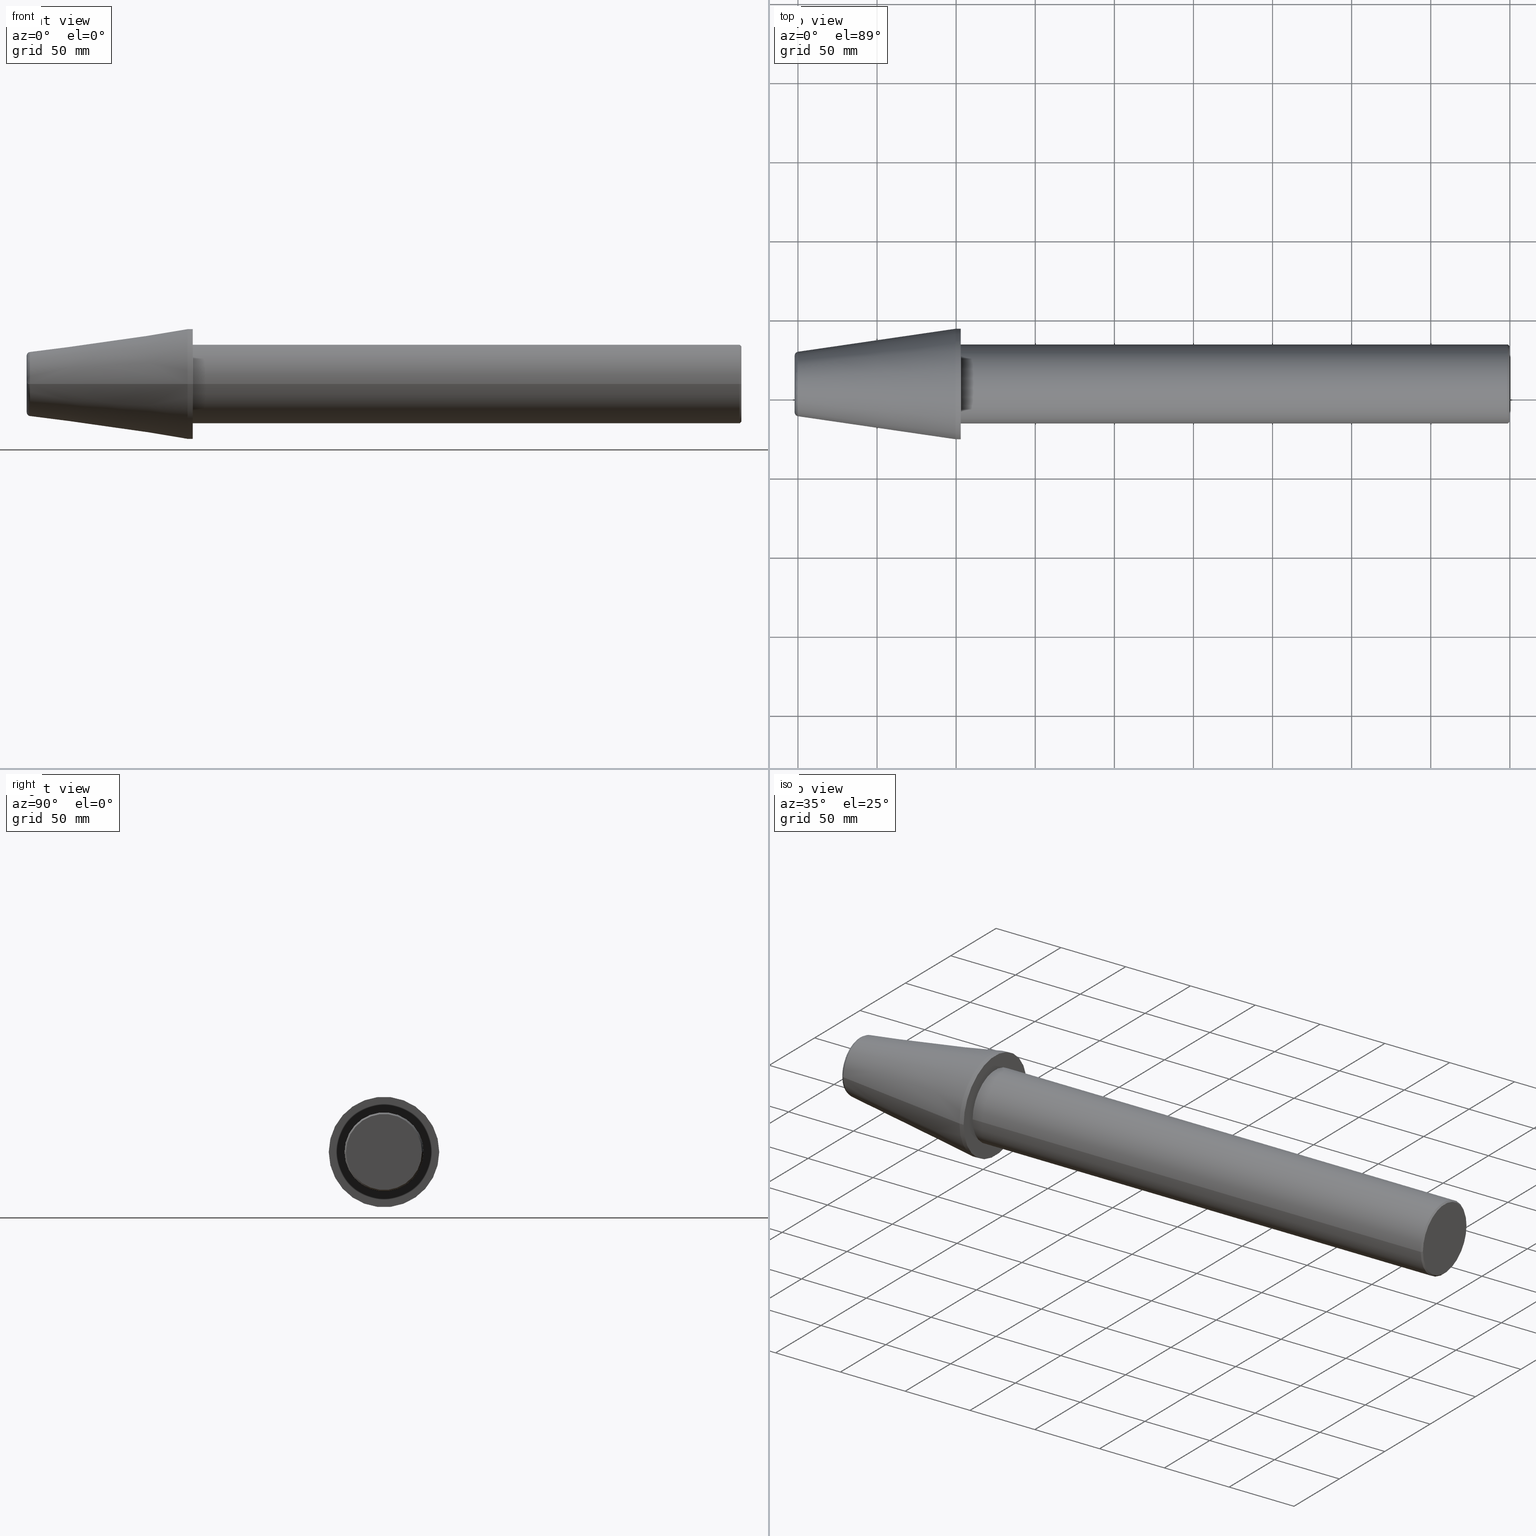
[diagram: canonical four-view strip — front | top / right | iso, engineering-drawing reading convention]
A machine part, canonical four-view strip (front | top / right | iso — engineering-drawing reading convention). The complete STEP part file that produces these views, byte-faithful:
ISO-10303-21;
HEADER;
FILE_DESCRIPTION (( 'STEP AP203' ),
    '1' );
FILE_NAME ('SK50 MASTER MANDRELL DIA50 L350.STEP',
    '2019-05-03T09:29:04',
    ( '' ),
    ( '' ),
    'SwSTEP 2.0',
    'SolidWorks 2014',
    '' );
FILE_SCHEMA (( 'CONFIG_CONTROL_DESIGN' ));
ENDSEC;

DATA;
#1 = APPROVAL_PERSON_ORGANIZATION ( #142, #179, #63 ) ;
#2 = ORIENTED_EDGE ( 'NONE', *, *, #336, .F. ) ;
#3 = DIRECTION ( 'NONE',  ( 1.000000000000000000, 6.357755330709176700E-015, 3.178877665354588400E-015 ) ) ;
#4 = DIRECTION ( 'NONE',  ( 6.357755330709176700E-015, -1.000000000000000000, 0.0000000000000000000 ) ) ;
#5 = CARTESIAN_POINT ( 'NONE',  ( 1697.925038306884300, 1644.348944982287800, 4.277078946022387300E-015 ) ) ;
#6 =( NAMED_UNIT ( * ) PLANE_ANGLE_UNIT ( ) SI_UNIT ( $, .RADIAN. ) );
#7 = ORIENTED_EDGE ( 'NONE', *, *, #90, .T. ) ;
#8 = DIRECTION ( 'NONE',  ( 1.000000000000000000, 7.864335758274511400E-015, 0.0000000000000000000 ) ) ;
#9 = FACE_OUTER_BOUND ( 'NONE', #147, .T. ) ;
#10 = EDGE_LOOP ( 'NONE', ( #422, #274, #356, #178 ) ) ;
#11 = CARTESIAN_POINT ( 'NONE',  ( 1799.675038306884500, 1609.423944982286500, 0.0000000000000000000 ) ) ;
#12 = AXIS2_PLACEMENT_3D ( 'NONE', #300, #132, #386 ) ;
#13 = AXIS2_PLACEMENT_3D ( 'NONE', #25, #3, #14 ) ;
#14 = DIRECTION ( 'NONE',  ( -6.357755330709217000E-015, 1.000000000000000000, 0.0000000000000000000 ) ) ;
#15 = DIRECTION ( 'NONE',  ( -1.088545056628355800E-014, 1.000000000000000000, 0.0000000000000000000 ) ) ;
#16 = SHAPE_DEFINITION_REPRESENTATION ( #428, #94 ) ;
#17 = CC_DESIGN_DATE_AND_TIME_ASSIGNMENT ( #226, #410, ( #127 ) ) ;
#18 = PERSON_AND_ORGANIZATION ( #334, #199 ) ;
#19 = DIRECTION ( 'NONE',  ( 7.864335758274511400E-015, -1.000000000000000000, 0.0000000000000000000 ) ) ;
#20 = DIRECTION ( 'NONE',  ( -1.000000000000000000, -7.864335758274511400E-015, 0.0000000000000000000 ) ) ;
#21 = PLANE ( 'NONE',  #223 ) ;
#22 = AXIS2_PLACEMENT_3D ( 'NONE', #374, #414, #249 ) ;
#23 = CIRCLE ( 'NONE', #260, 34.92500000000209300 ) ;
#24 = EDGE_CURVE ( 'NONE', #114, #201, #23, .T. ) ;
#25 = CARTESIAN_POINT ( 'NONE',  ( 1799.675038306884500, 1609.423944982286700, -4.466826931958537700E-042 ) ) ;
#26 = DIRECTION ( 'NONE',  ( 8.881784197001836100E-015, -1.000000000000000000, 0.0000000000000000000 ) ) ;
#27 = DIRECTION ( 'NONE',  ( 1.000000000000000000, 7.864335758274511400E-015, 0.0000000000000000000 ) ) ;
#28 = CARTESIAN_POINT ( 'NONE',  ( 1802.875038306884600, 1609.423944982286500, 0.0000000000000000000 ) ) ;
#29 = CARTESIAN_POINT ( 'NONE',  ( 1799.675038306884700, 1574.498944982284900, 4.277078946022360400E-015 ) ) ;
#30 = DIRECTION ( 'NONE',  ( 1.000000000000000000, 7.864335758274511400E-015, 0.0000000000000000000 ) ) ;
#31 = DIRECTION ( 'NONE',  ( -1.000000000000000000, -7.864335758274511400E-015, -0.0000000000000000000 ) ) ;
#32 = VECTOR ( 'NONE', #54, 1000.000000000000000 ) ;
#33 = CARTESIAN_POINT ( 'NONE',  ( 1802.875038306884100, 1644.348944982288500, 0.0000000000000000000 ) ) ;
#34 = AXIS2_PLACEMENT_3D ( 'NONE', #324, #424, #302 ) ;
#35 = VERTEX_POINT ( 'NONE', #75 ) ;
#36 = CIRCLE ( 'NONE', #68, 24.99999999999835900 ) ;
#37 = DIRECTION ( 'NONE',  ( 8.881784197001836100E-015, -1.000000000000000000, 0.0000000000000000000 ) ) ;
#38 = PRODUCT ( 'SK50 MASTER MANDRELL DIA50 L350', 'SK50 MASTER MANDRELL DIA50 L350', '', ( #237 ) ) ;
#39 = DIRECTION ( 'NONE',  ( 0.9895327870518778600, -0.1443082234293763500, 3.163276336286633200E-015 ) ) ;
#40 = PRODUCT_DEFINITION_FORMATION_WITH_SPECIFIED_SOURCE ( 'ANY', '', #38, .NOT_KNOWN. ) ;
#41 = EDGE_CURVE ( 'NONE', #201, #119, #180, .T. ) ;
#42 = EDGE_LOOP ( 'NONE', ( #106, #227, #408, #248 ) ) ;
#43 = CARTESIAN_POINT ( 'NONE',  ( 2148.675038306883800, 1584.423944982292400, 0.0000000000000000000 ) ) ;
#44 = DATE_AND_TIME ( #335, #259 ) ;
#45 = CC_DESIGN_PERSON_AND_ORGANIZATION_ASSIGNMENT ( #118, #202, ( #40 ) ) ;
#46 = CALENDAR_DATE ( 2019, 3, 5 ) ;
#47 = VERTEX_POINT ( 'NONE', #59 ) ;
#48 =( GEOMETRIC_REPRESENTATION_CONTEXT ( 3 ) GLOBAL_UNCERTAINTY_ASSIGNED_CONTEXT ( ( #148 ) ) GLOBAL_UNIT_ASSIGNED_CONTEXT ( ( #418, #6, #383 ) ) REPRESENTATION_CONTEXT ( 'NONE', 'WORKASPACE' ) );
#49 = CARTESIAN_POINT ( 'NONE',  ( 1700.064267748310600, 1629.822237507979700, 0.0000000000000000000 ) ) ;
#50 = CIRCLE ( 'NONE', #235, 24.99999999999835900 ) ;
#51 = ORIENTED_EDGE ( 'NONE', *, *, #24, .T. ) ;
#52 = DIRECTION ( 'NONE',  ( 8.881784197001836100E-015, -1.000000000000000000, 0.0000000000000000000 ) ) ;
#53 = AXIS2_PLACEMENT_3D ( 'NONE', #379, #216, #407 ) ;
#54 = DIRECTION ( 'NONE',  ( -0.7071067811866135200, -0.7071067811864815100, 0.0000000000000000000 ) ) ;
#55 = DATE_AND_TIME ( #46, #251 ) ;
#56 = CONICAL_SURFACE ( 'NONE', #181, 24.99999999999680300, 0.7853981633973372600 ) ;
#57 = ORIENTED_EDGE ( 'NONE', *, *, #145, .F. ) ;
#58 = DIRECTION ( 'NONE',  ( -1.000000000000000000, -7.864335758274511400E-015, -0.0000000000000000000 ) ) ;
#59 = CARTESIAN_POINT ( 'NONE',  ( 2148.675038306883800, 1584.423944982292600, 0.0000000000000000000 ) ) ;
#60 = AXIS2_PLACEMENT_3D ( 'NONE', #340, #346, #266 ) ;
#61 = CARTESIAN_POINT ( 'NONE',  ( 1697.925038306884500, 1609.423944982285500, 0.0000000000000000000 ) ) ;
#62 = DIRECTION ( 'NONE',  ( -1.000000000000000000, -1.776356839400485500E-014, 0.0000000000000000000 ) ) ;
#63 = APPROVAL_ROLE ( '' ) ;
#64 = CARTESIAN_POINT ( 'NONE',  ( 1802.875038306884600, 1574.498944982284500, 0.0000000000000000000 ) ) ;
#65 = AXIS2_PLACEMENT_3D ( 'NONE', #427, #162, #190 ) ;
#66 = DIRECTION ( 'NONE',  ( -1.000000000000000000, -7.864335758274511400E-015, -0.0000000000000000000 ) ) ;
#67 = CC_DESIGN_PERSON_AND_ORGANIZATION_ASSIGNMENT ( #18, #409, ( #127 ) ) ;
#68 = AXIS2_PLACEMENT_3D ( 'NONE', #313, #342, #224 ) ;
#69 = EDGE_LOOP ( 'NONE', ( #192, #134, #282, #263 ) ) ;
#70 = ORIENTED_EDGE ( 'NONE', *, *, #296, .F. ) ;
#71 = CARTESIAN_POINT ( 'NONE',  ( 1802.875038306884300, 1634.423944982284900, 3.061616997868183100E-015 ) ) ;
#72 = ADVANCED_FACE ( 'NONE', ( #89 ), #395, .T. ) ;
#73 = LINE ( 'NONE', #43, #32 ) ;
#74 = DIRECTION ( 'NONE',  ( 6.357755330709176700E-015, -1.000000000000000000, 0.0000000000000000000 ) ) ;
#75 = CARTESIAN_POINT ( 'NONE',  ( 1697.925038306885000, 1591.499484424221700, 0.0000000000000000000 ) ) ;
#76 = SECURITY_CLASSIFICATION ( '', '', #96 ) ;
#77 = DIRECTION ( 'NONE',  ( -1.000000000000000000, -7.864335758274511400E-015, -0.0000000000000000000 ) ) ;
#78 = DIRECTION ( 'NONE',  ( -1.000000000000000000, -7.864335758274511400E-015, -0.0000000000000000000 ) ) ;
#79 = VECTOR ( 'NONE', #39, 1000.000000000000200 ) ;
#80 = AXIS2_PLACEMENT_3D ( 'NONE', #365, #30, #370 ) ;
#81 = ORIENTED_EDGE ( 'NONE', *, *, #290, .T. ) ;
#82 = FACE_OUTER_BOUND ( 'NONE', #10, .T. ) ;
#83 = VERTEX_POINT ( 'NONE', #49 ) ;
#84 = APPROVAL_DATE_TIME ( #337, #169 ) ;
#85 = EDGE_CURVE ( 'NONE', #325, #47, #73, .T. ) ;
#86 = EDGE_CURVE ( 'NONE', #272, #247, #400, .T. ) ;
#87 = PRODUCT_RELATED_PRODUCT_CATEGORY ( 'detail', '', ( #38 ) ) ;
#88 = VECTOR ( 'NONE', #183, 1000.000000000000000 ) ;
#89 = FACE_OUTER_BOUND ( 'NONE', #141, .T. ) ;
#90 = EDGE_CURVE ( 'NONE', #405, #329, #373, .T. ) ;
#91 = ADVANCED_FACE ( 'NONE', ( #99, #9 ), #21, .F. ) ;
#92 = CARTESIAN_POINT ( 'NONE',  ( 1697.925038306884500, 1627.348405540349900, 2.255704732903340900E-015 ) ) ;
#93 = ORIENTED_EDGE ( 'NONE', *, *, #86, .F. ) ;
#94 = ADVANCED_BREP_SHAPE_REPRESENTATION ( 'SK50 MASTER MANDRELL DIA50 L350', ( #289, #12 ), #48 ) ;
#95 = CC_DESIGN_APPROVAL ( #279, ( #76 ) ) ;
#96 = SECURITY_CLASSIFICATION_LEVEL ( 'unclassified' ) ;
#97 = EDGE_CURVE ( 'NONE', #329, #119, #109, .T. ) ;
#98 = EDGE_LOOP ( 'NONE', ( #51, #304, #203, #146 ) ) ;
#99 = FACE_BOUND ( 'NONE', #421, .T. ) ;
#100 = DIRECTION ( 'NONE',  ( 1.850371707708883500E-014, -1.000000000000000000, 0.0000000000000000000 ) ) ;
#101 = EDGE_CURVE ( 'NONE', #47, #149, #36, .T. ) ;
#102 = ADVANCED_FACE ( 'NONE', ( #160 ), #135, .T. ) ;
#103 = CARTESIAN_POINT ( 'NONE',  ( 1697.925038306884300, 1628.649931267562800, 38.45197257055483700 ) ) ;
#104 = CC_DESIGN_APPROVAL ( #179, ( #40 ) ) ;
#105 = ORIENTED_EDGE ( 'NONE', *, *, #307, .F. ) ;
#106 = ORIENTED_EDGE ( 'NONE', *, *, #238, .T. ) ;
#107 = CARTESIAN_POINT ( 'NONE',  ( 1697.925038306884300, 1628.649931267562800, 3.240863287713775200E-015 ) ) ;
#108 = LINE ( 'NONE', #217, #186 ) ;
#109 = CIRCLE ( 'NONE', #228, 34.92500000000209300 ) ;
#110 = LINE ( 'NONE', #359, #348 ) ;
#111 = CARTESIAN_POINT ( 'NONE',  ( 2148.675038306883400, 1609.423944982289200, 0.0000000000000000000 ) ) ;
#112 = EDGE_CURVE ( 'NONE', #405, #83, #221, .T. ) ;
#113 = CIRCLE ( 'NONE', #53, 2.500000000000168800 ) ;
#114 = VERTEX_POINT ( 'NONE', #64 ) ;
#115 = EDGE_CURVE ( 'NONE', #372, #325, #380, .T. ) ;
#116 = FACE_OUTER_BOUND ( 'NONE', #200, .T. ) ;
#117 = LINE ( 'NONE', #194, #88 ) ;
#118 = PERSON_AND_ORGANIZATION ( #334, #199 ) ;
#119 = VERTEX_POINT ( 'NONE', #411 ) ;
#120 = COORDINATED_UNIVERSAL_TIME_OFFSET ( 5, 30, .AHEAD. ) ;
#121 = AXIS2_PLACEMENT_3D ( 'NONE', #286, #382, #37 ) ;
#122 = CARTESIAN_POINT ( 'NONE',  ( 1802.875038306884300, 1609.423944982286500, 0.0000000000000000000 ) ) ;
#123 = CYLINDRICAL_SURFACE ( 'NONE', #121, 24.99999999999835900 ) ;
#124 = VECTOR ( 'NONE', #78, 1000.000000000000000 ) ;
#125 = CARTESIAN_POINT ( 'NONE',  ( 1698.776365368041500, 1629.634416642537600, 2.475068942798598800E-015 ) ) ;
#126 = DIRECTION ( 'NONE',  ( 1.000000000000000000, 7.864335758274511400E-015, 0.0000000000000000000 ) ) ;
#127 = PRODUCT_DEFINITION ( 'UNKNOWN', '', #40, #278 ) ;
#128 = APPROVAL_DATE_TIME ( #55, #179 ) ;
#129 = EDGE_LOOP ( 'NONE', ( #341, #322, #426, #312 ) ) ;
#130 = AXIS2_PLACEMENT_3D ( 'NONE', #378, #229, #339 ) ;
#131 = COORDINATED_UNIVERSAL_TIME_OFFSET ( 5, 30, .AHEAD. ) ;
#132 = DIRECTION ( 'NONE',  ( 0.0000000000000000000, 0.0000000000000000000, 1.000000000000000000 ) ) ;
#133 = CIRCLE ( 'NONE', #165, 2.500000000000168800 ) ;
#134 = ORIENTED_EDGE ( 'NONE', *, *, #115, .T. ) ;
#135 = CONICAL_SURFACE ( 'NONE', #13, 34.92500000000187300, 0.1448138426688974100 ) ;
#136 = DIRECTION ( 'NONE',  ( 1.776356839400477700E-014, -1.000000000000000000, 0.0000000000000000000 ) ) ;
#137 = CC_DESIGN_DATE_AND_TIME_ASSIGNMENT ( #363, #206, ( #76 ) ) ;
#138 = CARTESIAN_POINT ( 'NONE',  ( 1697.925038306884700, 1591.499484424221700, -1.361473678611037100E-013 ) ) ;
#139 = ORIENTED_EDGE ( 'NONE', *, *, #270, .T. ) ;
#140 = FACE_OUTER_BOUND ( 'NONE', #98, .T. ) ;
#141 = EDGE_LOOP ( 'NONE', ( #143, #81, #243, #280 ) ) ;
#142 = PERSON_AND_ORGANIZATION ( #334, #199 ) ;
#143 = ORIENTED_EDGE ( 'NONE', *, *, #270, .F. ) ;
#144 = ORIENTED_EDGE ( 'NONE', *, *, #301, .F. ) ;
#145 = EDGE_CURVE ( 'NONE', #271, #35, #269, .T. ) ;
#146 = ORIENTED_EDGE ( 'NONE', *, *, #320, .F. ) ;
#147 = EDGE_LOOP ( 'NONE', ( #182, #267 ) ) ;
#148 = UNCERTAINTY_MEASURE_WITH_UNIT (LENGTH_MEASURE( 1.000000000000000100E-005 ), #418, 'distance_accuracy_value', 'NONE');
#149 = VERTEX_POINT ( 'NONE', #258 ) ;
#150 = CARTESIAN_POINT ( 'NONE',  ( 1697.925038306884500, 1590.197958697008300, -1.460332610175303800E-013 ) ) ;
#151 = ADVANCED_FACE ( 'NONE', ( #415 ), #215, .F. ) ;
#152 = ORIENTED_EDGE ( 'NONE', *, *, #296, .T. ) ;
#153 = EDGE_LOOP ( 'NONE', ( #321, #305, #430, #396 ) ) ;
#154 = PLANE ( 'NONE',  #65 ) ;
#155 = CC_DESIGN_PERSON_AND_ORGANIZATION_ASSIGNMENT ( #416, #231, ( #38 ) ) ;
#156 = CARTESIAN_POINT ( 'NONE',  ( 1697.925038306884500, 1627.348405540349600, 3.021469240264164200E-015 ) ) ;
#157 = CARTESIAN_POINT ( 'NONE',  ( 1697.925038306884500, 1627.348405540349900, 35.84892111612818200 ) ) ;
#158 = PERSON_AND_ORGANIZATION ( #334, #199 ) ;
#159 = LOCAL_TIME ( 14, 59, 4.000000000000000000, #120 ) ;
#160 = FACE_OUTER_BOUND ( 'NONE', #168, .T. ) ;
#161 = AXIS2_PLACEMENT_3D ( 'NONE', #316, #318, #319 ) ;
#162 = DIRECTION ( 'NONE',  ( 1.000000000000000000, 7.864335758274511400E-015, -0.0000000000000000000 ) ) ;
#163 = CARTESIAN_POINT ( 'NONE',  ( 1700.064267748310800, 1629.822237507979700, 40.79658505138835500 ) ) ;
#164 = CARTESIAN_POINT ( 'NONE',  ( 1700.064267748310800, 1629.822237507979700, 3.438475217741575500E-015 ) ) ;
#165 = AXIS2_PLACEMENT_3D ( 'NONE', #250, #254, #273 ) ;
#166 = ORIENTED_EDGE ( 'NONE', *, *, #275, .F. ) ;
#167 = CYLINDRICAL_SURFACE ( 'NONE', #218, 34.92500000000209300 ) ;
#168 = EDGE_LOOP ( 'NONE', ( #152, #7, #241, #105 ) ) ;
#169 = APPROVAL ( #385, 'UNSPECIFIED' ) ;
#170 = CARTESIAN_POINT ( 'NONE',  ( 1697.925038306885000, 1591.499484424221700, -35.84892111612791200 ) ) ;
#171 = AXIS2_PLACEMENT_3D ( 'NONE', #347, #188, #189 ) ;
#172 = CIRCLE ( 'NONE', #212, 34.92500000000209300 ) ;
#173 = ORIENTED_EDGE ( 'NONE', *, *, #101, .T. ) ;
#174 = CARTESIAN_POINT ( 'NONE',  ( 1698.776365368041500, 1629.634416642537600, 3.406814852525186900E-015 ) ) ;
#175 = FACE_OUTER_BOUND ( 'NONE', #129, .T. ) ;
#176 = CARTESIAN_POINT ( 'NONE',  ( 1697.925038306884500, 1627.348405540349900, 2.255704732903340900E-015 ) ) ;
#177 = AXIS2_PLACEMENT_3D ( 'NONE', #401, #256, #225 ) ;
#178 = ORIENTED_EDGE ( 'NONE', *, *, #85, .F. ) ;
#179 = APPROVAL ( #303, 'UNSPECIFIED' ) ;
#180 = LINE ( 'NONE', #5, #387 ) ;
#181 = AXIS2_PLACEMENT_3D ( 'NONE', #111, #62, #136 ) ;
#182 = ORIENTED_EDGE ( 'NONE', *, *, #24, .F. ) ;
#183 = DIRECTION ( 'NONE',  ( -1.000000000000000000, -7.864335758274511400E-015, -0.0000000000000000000 ) ) ;
#184 = FACE_OUTER_BOUND ( 'NONE', #412, .T. ) ;
#185 = CIRCLE ( 'NONE', #60, 23.99999999999624800 ) ;
#186 = VECTOR ( 'NONE', #77, 1000.000000000000000 ) ;
#187 = ADVANCED_FACE ( 'NONE', ( #82 ), #56, .T. ) ;
#188 = DIRECTION ( 'NONE',  ( 1.000000000000000000, 6.357755330709176700E-015, 3.178877665354588400E-015 ) ) ;
#189 = DIRECTION ( 'NONE',  ( -6.357755330709217000E-015, 1.000000000000000000, 0.0000000000000000000 ) ) ;
#190 = DIRECTION ( 'NONE',  ( -7.864335758274511400E-015, 1.000000000000000000, 0.0000000000000000000 ) ) ;
#191 = COORDINATED_UNIVERSAL_TIME_OFFSET ( 5, 30, .AHEAD. ) ;
#192 = ORIENTED_EDGE ( 'NONE', *, *, #425, .F. ) ;
#193 = CARTESIAN_POINT ( 'NONE',  ( 1700.064267748310800, 1609.423944982285800, 0.0000000000000000000 ) ) ;
#194 = CARTESIAN_POINT ( 'NONE',  ( 1697.925038306884300, 1634.423944982284000, 3.061616997868182300E-015 ) ) ;
#195 = CARTESIAN_POINT ( 'NONE',  ( 1697.925038306885000, 1591.499484424221700, 0.0000000000000000000 ) ) ;
#196 = CC_DESIGN_SECURITY_CLASSIFICATION ( #76, ( #40 ) ) ;
#197 = CARTESIAN_POINT ( 'NONE',  ( 1700.064267748310800, 1589.025652456591200, 40.79658505138819900 ) ) ;
#198 = ADVANCED_FACE ( 'NONE', ( #328 ), #154, .F. ) ;
#199 = ORGANIZATION ( 'UNSPECIFIED', 'UNSPECIFIED', '' ) ;
#200 = EDGE_LOOP ( 'NONE', ( #173, #139, #244, #399 ) ) ;
#201 = VERTEX_POINT ( 'NONE', #277 ) ;
#202 = PERSON_AND_ORGANIZATION_ROLE ( 'design_supplier' ) ;
#203 = ORIENTED_EDGE ( 'NONE', *, *, #284, .T. ) ;
#204 = APPROVAL_ROLE ( '' ) ;
#205 = APPROVAL_STATUS ( 'not_yet_approved' ) ;
#206 = DATE_TIME_ROLE ( 'classification_date' ) ;
#207 = PERSON_AND_ORGANIZATION_ROLE ( 'classification_officer' ) ;
#208 = AXIS2_PLACEMENT_3D ( 'NONE', #264, #314, #100 ) ;
#209 = CARTESIAN_POINT ( 'NONE',  ( 1697.925038306884500, 1627.348405540349900, 2.255704732903340900E-015 ) ) ;
#210 = CC_DESIGN_APPROVAL ( #169, ( #127 ) ) ;
#211 = CONICAL_SURFACE ( 'NONE', #22, 24.99999999999680300, 0.7853981633973372600 ) ;
#212 = AXIS2_PLACEMENT_3D ( 'NONE', #327, #331, #332 ) ;
#213 = CARTESIAN_POINT ( 'NONE',  ( 1697.925038306884300, 1627.348405540349600, -35.84892111612791200 ) ) ;
#214 = EDGE_LOOP ( 'NONE', ( #2, #294 ) ) ;
#215 = PLANE ( 'NONE',  #177 ) ;
#216 = DIRECTION ( 'NONE',  ( 0.0000000000000000000, 0.0000000000000000000, 1.000000000000000000 ) ) ;
#217 = CARTESIAN_POINT ( 'NONE',  ( 1697.925038306884700, 1584.423944982287100, 0.0000000000000000000 ) ) ;
#218 = AXIS2_PLACEMENT_3D ( 'NONE', #255, #240, #317 ) ;
#219 = CIRCLE ( 'NONE', #161, 34.92500000000209300 ) ;
#220 = LOCAL_TIME ( 14, 59, 4.000000000000000000, #285 ) ;
#221 = CIRCLE ( 'NONE', #345, 20.39829252569380500 ) ;
#222 = CARTESIAN_POINT ( 'NONE',  ( 1700.064267748311100, 1589.025652456591600, -1.549376522232160900E-013 ) ) ;
#223 = AXIS2_PLACEMENT_3D ( 'NONE', #33, #20, #19 ) ;
#224 = DIRECTION ( 'NONE',  ( 0.0000000000000000000, -1.000000000000000000, 0.0000000000000000000 ) ) ;
#225 = DIRECTION ( 'NONE',  ( 7.864335758274511400E-015, -1.000000000000000000, 0.0000000000000000000 ) ) ;
#226 = DATE_AND_TIME ( #353, #350 ) ;
#227 = ORIENTED_EDGE ( 'NONE', *, *, #275, .T. ) ;
#228 = AXIS2_PLACEMENT_3D ( 'NONE', #11, #8, #4 ) ;
#229 = DIRECTION ( 'NONE',  ( 1.000000000000000000, 7.864335758274511400E-015, 0.0000000000000000000 ) ) ;
#230 = APPROVAL_PERSON_ORGANIZATION ( #298, #279, #204 ) ;
#231 = PERSON_AND_ORGANIZATION_ROLE ( 'design_owner' ) ;
#232 = ADVANCED_FACE ( 'NONE', ( #184 ), #242, .T. ) ;
#233 = CARTESIAN_POINT ( 'NONE',  ( 1700.064267748311100, 1589.025652456591600, -4.996140729932514400E-015 ) ) ;
#234 = CC_DESIGN_PERSON_AND_ORGANIZATION_ASSIGNMENT ( #398, #403, ( #40 ) ) ;
#235 = AXIS2_PLACEMENT_3D ( 'NONE', #344, #352, #362 ) ;
#236 = CARTESIAN_POINT ( 'NONE',  ( 1697.925038306884700, 1574.498944982283500, 0.0000000000000000000 ) ) ;
#237 = MECHANICAL_CONTEXT ( 'NONE', #355, 'mechanical' ) ;
#238 = EDGE_CURVE ( 'NONE', #35, #271, #311, .T. ) ;
#239 = AXIS2_PLACEMENT_3D ( 'NONE', #61, #66, #52 ) ;
#240 = DIRECTION ( 'NONE',  ( -1.000000000000000000, -7.864335758274511400E-015, -0.0000000000000000000 ) ) ;
#241 = ORIENTED_EDGE ( 'NONE', *, *, #284, .F. ) ;
#242 =( BOUNDED_SURFACE ( )  B_SPLINE_SURFACE ( 3, 3, ( 
 ( #138, #377, #157, #156 ),
 ( #150, #295, #103, #107 ),
 ( #292, #431, #349, #174 ),
 ( #222, #197, #163, #164 ) ),
 .UNSPECIFIED., .F., .F., .T. ) 
 B_SPLINE_SURFACE_WITH_KNOTS ( ( 4, 4 ),
 ( 4, 4 ),
 ( 0.0000000000000000000, 1.000000000000000000 ),
 ( 0.0000000000000000000, 1.000000000000000000 ),
 .UNSPECIFIED. ) 
 GEOMETRIC_REPRESENTATION_ITEM ( )  RATIONAL_B_SPLINE_SURFACE ( (
 ( 1.000000000000000000, 0.3333333333333308700, 0.3333333333333308700, 1.000000000000000000),
 ( 0.8376057957161654500, 0.2792019319053864500, 0.2792019319053864500, 0.8376057957161654500),
 ( 0.8376057957161654500, 0.2792019319053864500, 0.2792019319053864500, 0.8376057957161654500),
 ( 1.000000000000000000, 0.3333333333333308700, 0.3333333333333308700, 1.000000000000000000) ) ) 
 REPRESENTATION_ITEM ( '' )  SURFACE ( )  );
#243 = ORIENTED_EDGE ( 'NONE', *, *, #276, .T. ) ;
#244 = ORIENTED_EDGE ( 'NONE', *, *, #86, .T. ) ;
#245 = AXIS2_PLACEMENT_3D ( 'NONE', #28, #27, #26 ) ;
#246 = APPROVAL_PERSON_ORGANIZATION ( #158, #169, #389 ) ;
#247 = VERTEX_POINT ( 'NONE', #343 ) ;
#248 = ORIENTED_EDGE ( 'NONE', *, *, #351, .F. ) ;
#249 = DIRECTION ( 'NONE',  ( 1.776356839400477700E-014, -1.000000000000000000, 0.0000000000000000000 ) ) ;
#250 = CARTESIAN_POINT ( 'NONE',  ( 1700.425038306884500, 1627.348405540349900, 2.195113324887624100E-015 ) ) ;
#251 = LOCAL_TIME ( 14, 59, 4.000000000000000000, #191 ) ;
#252 = CIRCLE ( 'NONE', #130, 24.99999999999835900 ) ;
#253 = CALENDAR_DATE ( 2019, 3, 5 ) ;
#254 = DIRECTION ( 'NONE',  ( -9.631033613790952700E-031, 1.224646799147353200E-016, -1.000000000000000000 ) ) ;
#255 = CARTESIAN_POINT ( 'NONE',  ( 1697.925038306884500, 1609.423944982285500, 0.0000000000000000000 ) ) ;
#256 = DIRECTION ( 'NONE',  ( -1.000000000000000000, -7.864335758274511400E-015, 0.0000000000000000000 ) ) ;
#257 = COORDINATED_UNIVERSAL_TIME_OFFSET ( 5, 30, .AHEAD. ) ;
#258 = CARTESIAN_POINT ( 'NONE',  ( 2148.675038306883800, 1634.423944982285300, 3.061616997867906600E-015 ) ) ;
#259 = LOCAL_TIME ( 14, 59, 4.000000000000000000, #131 ) ;
#260 = AXIS2_PLACEMENT_3D ( 'NONE', #122, #31, #74 ) ;
#261 = ORIENTED_EDGE ( 'NONE', *, *, #238, .F. ) ;
#262 = CONICAL_SURFACE ( 'NONE', #171, 34.92500000000187300, 0.1448138426688974100 ) ;
#263 = ORIENTED_EDGE ( 'NONE', *, *, #290, .F. ) ;
#264 = CARTESIAN_POINT ( 'NONE',  ( 2149.675038306884300, 1609.423944982289200, 0.0000000000000000000 ) ) ;
#265 = ADVANCED_FACE ( 'NONE', ( #175 ), #262, .T. ) ;
#266 = DIRECTION ( 'NONE',  ( 1.850371707708883500E-014, -1.000000000000000000, 0.0000000000000000000 ) ) ;
#267 = ORIENTED_EDGE ( 'NONE', *, *, #287, .F. ) ;
#268 = PERSON_AND_ORGANIZATION ( #334, #199 ) ;
#269 =( BOUNDED_CURVE ( )  B_SPLINE_CURVE ( 3, ( #92, #357, #368, #195 ),
 .UNSPECIFIED., .F., .F. ) 
 B_SPLINE_CURVE_WITH_KNOTS ( ( 4, 4 ),
 ( 0.0000000000000000000, 1.000000000000000000 ),
 .UNSPECIFIED. ) 
 CURVE ( )  GEOMETRIC_REPRESENTATION_ITEM ( )  RATIONAL_B_SPLINE_CURVE ( ( 1.000000000000000000, 0.3333333333333333700, 0.3333333333333333700, 1.000000000000000000 ) ) 
 REPRESENTATION_ITEM ( '' )  );
#270 = EDGE_CURVE ( 'NONE', #149, #272, #117, .T. ) ;
#271 = VERTEX_POINT ( 'NONE', #209 ) ;
#272 = VERTEX_POINT ( 'NONE', #71 ) ;
#273 = DIRECTION ( 'NONE',  ( 0.0000000000000000000, 1.000000000000000000, 1.224646799147360400E-016 ) ) ;
#274 = ORIENTED_EDGE ( 'NONE', *, *, #425, .T. ) ;
#275 = EDGE_CURVE ( 'NONE', #271, #83, #133, .T. ) ;
#276 = EDGE_CURVE ( 'NONE', #47, #247, #108, .T. ) ;
#277 = CARTESIAN_POINT ( 'NONE',  ( 1802.875038306884100, 1644.348944982288500, 4.277078946022387300E-015 ) ) ;
#278 = DESIGN_CONTEXT ( 'detailed design', #420, 'design' ) ;
#279 = APPROVAL ( #205, 'UNSPECIFIED' ) ;
#280 = ORIENTED_EDGE ( 'NONE', *, *, #301, .T. ) ;
#281 = CARTESIAN_POINT ( 'NONE',  ( 2149.675038306883800, 1633.423944982285300, 3.000384657910535800E-015 ) ) ;
#282 = ORIENTED_EDGE ( 'NONE', *, *, #85, .T. ) ;
#283 =( BOUNDED_SURFACE ( )  B_SPLINE_SURFACE ( 3, 3, ( 
 ( #364, #333, #369, #390 ),
 ( #391, #392, #394, #402 ),
 ( #125, #310, #360, #306 ),
 ( #419, #376, #358, #233 ) ),
 .UNSPECIFIED., .F., .F., .F. ) 
 B_SPLINE_SURFACE_WITH_KNOTS ( ( 4, 4 ),
 ( 4, 4 ),
 ( 0.0000000000000000000, 1.000000000000000000 ),
 ( 0.0000000000000000000, 1.000000000000000000 ),
 .UNSPECIFIED. ) 
 GEOMETRIC_REPRESENTATION_ITEM ( )  RATIONAL_B_SPLINE_SURFACE ( (
 ( 1.000000000000000000, 0.3333333333333334300, 0.3333333333333334300, 1.000000000000000000),
 ( 0.8376057957161654500, 0.2792019319053885600, 0.2792019319053885600, 0.8376057957161654500),
 ( 0.8376057957161654500, 0.2792019319053885600, 0.2792019319053885600, 0.8376057957161654500),
 ( 1.000000000000000000, 0.3333333333333334300, 0.3333333333333334300, 1.000000000000000000) ) ) 
 REPRESENTATION_ITEM ( '' )  SURFACE ( )  );
#284 = EDGE_CURVE ( 'NONE', #119, #329, #219, .T. ) ;
#285 = COORDINATED_UNIVERSAL_TIME_OFFSET ( 5, 30, .AHEAD. ) ;
#286 = CARTESIAN_POINT ( 'NONE',  ( 1697.925038306884500, 1609.423944982285500, 0.0000000000000000000 ) ) ;
#287 = EDGE_CURVE ( 'NONE', #201, #114, #172, .T. ) ;
#288 = CARTESIAN_POINT ( 'NONE',  ( 1697.925038306885000, 1591.499484424221700, 0.0000000000000000000 ) ) ;
#289 = MANIFOLD_SOLID_BREP ( 'Revolve1', #381 ) ;
#290 = EDGE_CURVE ( 'NONE', #149, #47, #50, .T. ) ;
#291 = DIRECTION ( 'NONE',  ( 0.9895327870518760800, 0.1443082234293889800, 3.145603675895289900E-015 ) ) ;
#292 = CARTESIAN_POINT ( 'NONE',  ( 1698.776365368041800, 1589.213473322033200, -1.535110365447983100E-013 ) ) ;
#293 = VECTOR ( 'NONE', #291, 1000.000000000000000 ) ;
#294 = ORIENTED_EDGE ( 'NONE', *, *, #115, .F. ) ;
#295 = CARTESIAN_POINT ( 'NONE',  ( 1697.925038306884500, 1590.197958697008300, 38.45197257055467300 ) ) ;
#296 = EDGE_CURVE ( 'NONE', #83, #405, #308, .T. ) ;
#297 = ADVANCED_FACE ( 'NONE', ( #299 ), #283, .T. ) ;
#298 = PERSON_AND_ORGANIZATION ( #334, #199 ) ;
#299 = FACE_OUTER_BOUND ( 'NONE', #42, .T. ) ;
#300 = CARTESIAN_POINT ( 'NONE',  ( 0.0000000000000000000, 0.0000000000000000000, 0.0000000000000000000 ) ) ;
#301 = EDGE_CURVE ( 'NONE', #247, #272, #252, .T. ) ;
#302 = DIRECTION ( 'NONE',  ( 6.357755330709176700E-015, -1.000000000000000000, 0.0000000000000000000 ) ) ;
#303 = APPROVAL_STATUS ( 'not_yet_approved' ) ;
#304 = ORIENTED_EDGE ( 'NONE', *, *, #41, .T. ) ;
#305 = ORIENTED_EDGE ( 'NONE', *, *, #287, .T. ) ;
#306 = CARTESIAN_POINT ( 'NONE',  ( 1698.776365368041800, 1589.213473322033200, -4.950137885597218200E-015 ) ) ;
#307 = EDGE_CURVE ( 'NONE', #83, #119, #429, .T. ) ;
#308 = CIRCLE ( 'NONE', #80, 20.39829252569380500 ) ;
#309 = APPROVAL_DATE_TIME ( #44, #279 ) ;
#310 = CARTESIAN_POINT ( 'NONE',  ( 1698.776365368041500, 1629.634416642537600, -40.42094332050404400 ) ) ;
#311 =( BOUNDED_CURVE ( )  B_SPLINE_CURVE ( 3, ( #288, #170, #213, #176 ),
 .UNSPECIFIED., .F., .F. ) 
 B_SPLINE_CURVE_WITH_KNOTS ( ( 4, 4 ),
 ( 0.0000000000000000000, 1.000000000000000000 ),
 .UNSPECIFIED. ) 
 CURVE ( )  GEOMETRIC_REPRESENTATION_ITEM ( )  RATIONAL_B_SPLINE_CURVE ( ( 1.000000000000000000, 0.3333333333333333700, 0.3333333333333333700, 1.000000000000000000 ) ) 
 REPRESENTATION_ITEM ( '' )  );
#312 = ORIENTED_EDGE ( 'NONE', *, *, #97, .F. ) ;
#313 = CARTESIAN_POINT ( 'NONE',  ( 2148.675038306883800, 1609.423944982289200, 0.0000000000000000000 ) ) ;
#314 = DIRECTION ( 'NONE',  ( -1.000000000000000000, -1.776356839400485500E-014, 0.0000000000000000000 ) ) ;
#315 = DIRECTION ( 'NONE',  ( -0.7071067811866387200, 0.7071067811864564200, 8.659560562353972700E-017 ) ) ;
#316 = CARTESIAN_POINT ( 'NONE',  ( 1799.675038306884500, 1609.423944982286500, 0.0000000000000000000 ) ) ;
#317 = DIRECTION ( 'NONE',  ( 6.357755330709176700E-015, -1.000000000000000000, 0.0000000000000000000 ) ) ;
#318 = DIRECTION ( 'NONE',  ( 1.000000000000000000, 7.864335758274511400E-015, 0.0000000000000000000 ) ) ;
#319 = DIRECTION ( 'NONE',  ( 6.357755330709176700E-015, -1.000000000000000000, 0.0000000000000000000 ) ) ;
#320 = EDGE_CURVE ( 'NONE', #114, #329, #393, .T. ) ;
#321 = ORIENTED_EDGE ( 'NONE', *, *, #41, .F. ) ;
#322 = ORIENTED_EDGE ( 'NONE', *, *, #112, .T. ) ;
#323 = CALENDAR_DATE ( 2019, 3, 5 ) ;
#324 = CARTESIAN_POINT ( 'NONE',  ( 1697.925038306884500, 1609.423944982285500, 0.0000000000000000000 ) ) ;
#325 = VERTEX_POINT ( 'NONE', #367 ) ;
#326 = ADVANCED_FACE ( 'NONE', ( #417 ), #211, .T. ) ;
#327 = CARTESIAN_POINT ( 'NONE',  ( 1802.875038306884300, 1609.423944982286500, 0.0000000000000000000 ) ) ;
#328 = FACE_OUTER_BOUND ( 'NONE', #413, .T. ) ;
#329 = VERTEX_POINT ( 'NONE', #371 ) ;
#330 = ORIENTED_EDGE ( 'NONE', *, *, #351, .T. ) ;
#331 = DIRECTION ( 'NONE',  ( -1.000000000000000000, -7.864335758274511400E-015, -0.0000000000000000000 ) ) ;
#332 = DIRECTION ( 'NONE',  ( 6.357755330709176700E-015, -1.000000000000000000, 0.0000000000000000000 ) ) ;
#333 = CARTESIAN_POINT ( 'NONE',  ( 1697.925038306884300, 1627.348405540349600, -35.84892111612791200 ) ) ;
#334 = PERSON ( 'UNSPECIFIED', 'UNSPECIFIED', 'UNSPECIFIED', ('UNSPECIFIED'), ('UNSPECIFIED'), ('UNSPECIFIED') ) ;
#335 = CALENDAR_DATE ( 2019, 3, 5 ) ;
#336 = EDGE_CURVE ( 'NONE', #325, #372, #185, .T. ) ;
#337 = DATE_AND_TIME ( #323, #220 ) ;
#338 = CC_DESIGN_PERSON_AND_ORGANIZATION_ASSIGNMENT ( #268, #207, ( #76 ) ) ;
#339 = DIRECTION ( 'NONE',  ( 8.881784197001836100E-015, -1.000000000000000000, 0.0000000000000000000 ) ) ;
#340 = CARTESIAN_POINT ( 'NONE',  ( 2149.675038306884300, 1609.423944982289200, 0.0000000000000000000 ) ) ;
#341 = ORIENTED_EDGE ( 'NONE', *, *, #90, .F. ) ;
#342 = DIRECTION ( 'NONE',  ( -1.000000000000000000, -7.864335758274511400E-015, -0.0000000000000000000 ) ) ;
#343 = CARTESIAN_POINT ( 'NONE',  ( 1802.875038306884800, 1584.423944982288000, 0.0000000000000000000 ) ) ;
#344 = CARTESIAN_POINT ( 'NONE',  ( 2148.675038306883800, 1609.423944982289200, 0.0000000000000000000 ) ) ;
#345 = AXIS2_PLACEMENT_3D ( 'NONE', #193, #126, #15 ) ;
#346 = DIRECTION ( 'NONE',  ( -1.000000000000000000, -1.776356839400485500E-014, 0.0000000000000000000 ) ) ;
#347 = CARTESIAN_POINT ( 'NONE',  ( 1799.675038306884500, 1609.423944982286700, -4.466826931958537700E-042 ) ) ;
#348 = VECTOR ( 'NONE', #315, 999.9999999999998900 ) ;
#349 = CARTESIAN_POINT ( 'NONE',  ( 1698.776365368041500, 1629.634416642537600, 40.42094332050435000 ) ) ;
#350 = LOCAL_TIME ( 14, 59, 4.000000000000000000, #257 ) ;
#351 = EDGE_CURVE ( 'NONE', #35, #405, #113, .T. ) ;
#352 = DIRECTION ( 'NONE',  ( -1.000000000000000000, -7.864335758274511400E-015, -0.0000000000000000000 ) ) ;
#353 = CALENDAR_DATE ( 2019, 3, 5 ) ;
#354 = ADVANCED_FACE ( 'NONE', ( #423 ), #361, .T. ) ;
#355 = APPLICATION_CONTEXT ( 'configuration controlled 3d designs of mechanical parts and assemblies' ) ;
#356 = ORIENTED_EDGE ( 'NONE', *, *, #101, .F. ) ;
#357 = CARTESIAN_POINT ( 'NONE',  ( 1697.925038306884300, 1627.348405540349900, 35.84892111612835900 ) ) ;
#358 = CARTESIAN_POINT ( 'NONE',  ( 1700.064267748310800, 1589.025652456591600, -40.79658505138805700 ) ) ;
#359 = CARTESIAN_POINT ( 'NONE',  ( 2148.675038306882900, 1634.423944982286000, 3.061616997867991400E-015 ) ) ;
#360 = CARTESIAN_POINT ( 'NONE',  ( 1698.776365368041800, 1589.213473322033500, -40.42094332050405100 ) ) ;
#361 = CYLINDRICAL_SURFACE ( 'NONE', #34, 34.92500000000209300 ) ;
#362 = DIRECTION ( 'NONE',  ( 0.0000000000000000000, -1.000000000000000000, 0.0000000000000000000 ) ) ;
#363 = DATE_AND_TIME ( #253, #159 ) ;
#364 = CARTESIAN_POINT ( 'NONE',  ( 1697.925038306884500, 1627.348405540349600, 2.195113324887599600E-015 ) ) ;
#365 = CARTESIAN_POINT ( 'NONE',  ( 1700.064267748310800, 1609.423944982285800, 0.0000000000000000000 ) ) ;
#366 = ADVANCED_FACE ( 'NONE', ( #140 ), #167, .T. ) ;
#367 = CARTESIAN_POINT ( 'NONE',  ( 2149.675038306884700, 1585.423944982292800, 0.0000000000000000000 ) ) ;
#368 = CARTESIAN_POINT ( 'NONE',  ( 1697.925038306885000, 1591.499484424221500, 35.84892111612835900 ) ) ;
#369 = CARTESIAN_POINT ( 'NONE',  ( 1697.925038306884300, 1591.499484424221900, -35.84892111612791900 ) ) ;
#370 = DIRECTION ( 'NONE',  ( -1.088545056628355800E-014, 1.000000000000000000, 0.0000000000000000000 ) ) ;
#371 = CARTESIAN_POINT ( 'NONE',  ( 1799.675038306884700, 1574.498944982284900, 4.277078946022527700E-015 ) ) ;
#372 = VERTEX_POINT ( 'NONE', #281 ) ;
#373 = LINE ( 'NONE', #29, #79 ) ;
#374 = CARTESIAN_POINT ( 'NONE',  ( 2148.675038306883400, 1609.423944982289200, 0.0000000000000000000 ) ) ;
#375 = CARTESIAN_POINT ( 'NONE',  ( 1799.675038306884300, 1644.348944982288500, -4.466826931958537700E-042 ) ) ;
#376 = CARTESIAN_POINT ( 'NONE',  ( 1700.064267748310800, 1629.822237507979700, -40.79658505138805000 ) ) ;
#377 = CARTESIAN_POINT ( 'NONE',  ( 1697.925038306884500, 1591.499484424221500, 35.84892111612803900 ) ) ;
#378 = CARTESIAN_POINT ( 'NONE',  ( 1802.875038306884600, 1609.423944982286500, 0.0000000000000000000 ) ) ;
#379 = CARTESIAN_POINT ( 'NONE',  ( 1700.425038306884700, 1591.499484424221500, 0.0000000000000000000 ) ) ;
#380 = CIRCLE ( 'NONE', #208, 23.99999999999624800 ) ;
#381 = CLOSED_SHELL ( 'NONE', ( #297, #397, #187, #366, #102, #72, #91, #326, #354, #151, #265, #232, #198 ) ) ;
#382 = DIRECTION ( 'NONE',  ( -1.000000000000000000, -7.864335758274511400E-015, -0.0000000000000000000 ) ) ;
#383 =( NAMED_UNIT ( * ) SI_UNIT ( $, .STERADIAN. ) SOLID_ANGLE_UNIT ( ) );
#384 = APPLICATION_PROTOCOL_DEFINITION ( 'international standard', 'config_control_design', 1994, #420 ) ;
#385 = APPROVAL_STATUS ( 'not_yet_approved' ) ;
#386 = DIRECTION ( 'NONE',  ( 1.000000000000000000, 0.0000000000000000000, 0.0000000000000000000 ) ) ;
#387 = VECTOR ( 'NONE', #58, 1000.000000000000000 ) ;
#388 = ORIENTED_EDGE ( 'NONE', *, *, #145, .T. ) ;
#389 = APPROVAL_ROLE ( '' ) ;
#390 = CARTESIAN_POINT ( 'NONE',  ( 1697.925038306884700, 1591.499484424221700, -4.390226649775199300E-015 ) ) ;
#391 = CARTESIAN_POINT ( 'NONE',  ( 1697.925038306884300, 1628.649931267562800, 2.354504256471574200E-015 ) ) ;
#392 = CARTESIAN_POINT ( 'NONE',  ( 1697.925038306884300, 1628.649931267563000, -38.45197257055454500 ) ) ;
#393 = LINE ( 'NONE', #236, #124 ) ;
#394 = CARTESIAN_POINT ( 'NONE',  ( 1697.925038306884300, 1590.197958697008300, -38.45197257055455300 ) ) ;
#395 = CYLINDRICAL_SURFACE ( 'NONE', #239, 24.99999999999835900 ) ;
#396 = ORIENTED_EDGE ( 'NONE', *, *, #97, .T. ) ;
#397 = ADVANCED_FACE ( 'NONE', ( #116 ), #123, .T. ) ;
#398 = PERSON_AND_ORGANIZATION ( #334, #199 ) ;
#399 = ORIENTED_EDGE ( 'NONE', *, *, #276, .F. ) ;
#400 = CIRCLE ( 'NONE', #245, 24.99999999999835900 ) ;
#401 = CARTESIAN_POINT ( 'NONE',  ( 2149.675038306883400, 1633.423944982286000, 0.0000000000000000000 ) ) ;
#402 = CARTESIAN_POINT ( 'NONE',  ( 1697.925038306884500, 1590.197958697008300, -4.709008512943168900E-015 ) ) ;
#403 = PERSON_AND_ORGANIZATION_ROLE ( 'creator' ) ;
#404 = CARTESIAN_POINT ( 'NONE',  ( 1700.064267748311100, 1589.025652456592100, -1.549376522232125600E-013 ) ) ;
#405 = VERTEX_POINT ( 'NONE', #404 ) ;
#406 = APPLICATION_PROTOCOL_DEFINITION ( 'international standard', 'config_control_design', 1994, #355 ) ;
#407 = DIRECTION ( 'NONE',  ( 0.0000000000000000000, -1.000000000000000000, 0.0000000000000000000 ) ) ;
#408 = ORIENTED_EDGE ( 'NONE', *, *, #112, .F. ) ;
#409 = PERSON_AND_ORGANIZATION_ROLE ( 'creator' ) ;
#410 = DATE_TIME_ROLE ( 'creation_date' ) ;
#411 = CARTESIAN_POINT ( 'NONE',  ( 1799.675038306884300, 1644.348944982288500, -1.672640279132691700E-028 ) ) ;
#412 = EDGE_LOOP ( 'NONE', ( #166, #388, #330, #70 ) ) ;
#413 = EDGE_LOOP ( 'NONE', ( #261, #57 ) ) ;
#414 = DIRECTION ( 'NONE',  ( -1.000000000000000000, -1.776356839400485500E-014, 0.0000000000000000000 ) ) ;
#415 = FACE_OUTER_BOUND ( 'NONE', #214, .T. ) ;
#416 = PERSON_AND_ORGANIZATION ( #334, #199 ) ;
#417 = FACE_OUTER_BOUND ( 'NONE', #69, .T. ) ;
#418 =( LENGTH_UNIT ( ) NAMED_UNIT ( * ) SI_UNIT ( .MILLI., .METRE. ) );
#419 = CARTESIAN_POINT ( 'NONE',  ( 1700.064267748310800, 1629.822237507979700, 2.498070364966252400E-015 ) ) ;
#420 = APPLICATION_CONTEXT ( 'configuration controlled 3d designs of mechanical parts and assemblies' ) ;
#421 = EDGE_LOOP ( 'NONE', ( #144, #93 ) ) ;
#422 = ORIENTED_EDGE ( 'NONE', *, *, #336, .T. ) ;
#423 = FACE_OUTER_BOUND ( 'NONE', #153, .T. ) ;
#424 = DIRECTION ( 'NONE',  ( -1.000000000000000000, -7.864335758274511400E-015, -0.0000000000000000000 ) ) ;
#425 = EDGE_CURVE ( 'NONE', #372, #149, #110, .T. ) ;
#426 = ORIENTED_EDGE ( 'NONE', *, *, #307, .T. ) ;
#427 = CARTESIAN_POINT ( 'NONE',  ( 1697.925038306884500, 1627.348405540349900, 0.0000000000000000000 ) ) ;
#428 = PRODUCT_DEFINITION_SHAPE ( 'NONE', 'NONE',  #127 ) ;
#429 = LINE ( 'NONE', #375, #293 ) ;
#430 = ORIENTED_EDGE ( 'NONE', *, *, #320, .T. ) ;
#431 = CARTESIAN_POINT ( 'NONE',  ( 1698.776365368041500, 1589.213473322033200, 40.42094332050419300 ) ) ;
ENDSEC;
END-ISO-10303-21;
